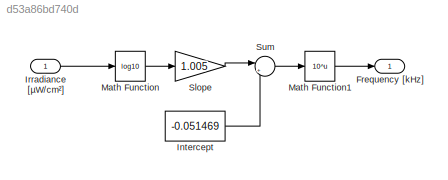
MODEL slx_d53a86bd740d
KIND model
BLOCK [Outport] Frequency [kHz]
  IconDisplay = Port number
BLOCK [Constant] Intercept
  Value = -0.051469
BLOCK [Inport] Irradiance [µW//cm²]
  IconDisplay = Port number
BLOCK [Math] Math Function
  Operator = log10
  Ports = [1, 1]
BLOCK [Math] Math Function1
  Operator = 10^u
  Ports = [1, 1]
BLOCK [Gain] Slope
  Gain = 1.005
  OutDataTypeStr = Inherit: Inherit via internal rule
  ParamDataTypeStr = Inherit: Inherit via internal rule
  SaturateOnIntegerOverflow = off
BLOCK [Sum] Sum
  IconShape = round
  InputSameDT = off
  Inputs = |++
  OutDataTypeStr = Inherit: Inherit via internal rule
  Ports = [2, 1]
  SaturateOnIntegerOverflow = off
LINE Intercept:1 -> Sum:2
LINE Irradiance [µW//cm²]:1 -> Math Function:1
LINE Math Function1:1 -> Frequency [kHz]:1
LINE Math Function:1 -> Slope:1
LINE Slope:1 -> Sum:1
LINE Sum:1 -> Math Function1:1
